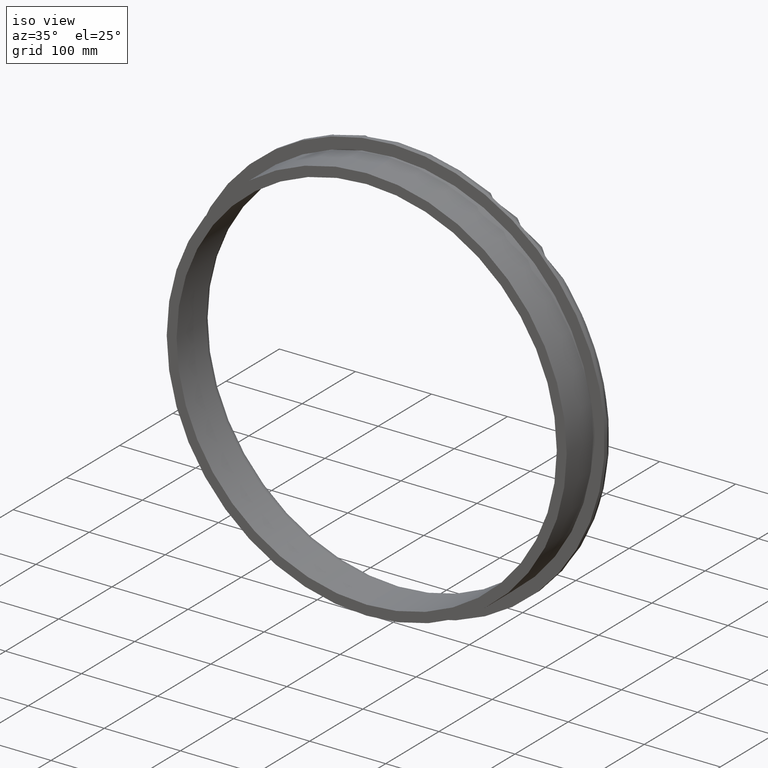
[diagram: clean part render]
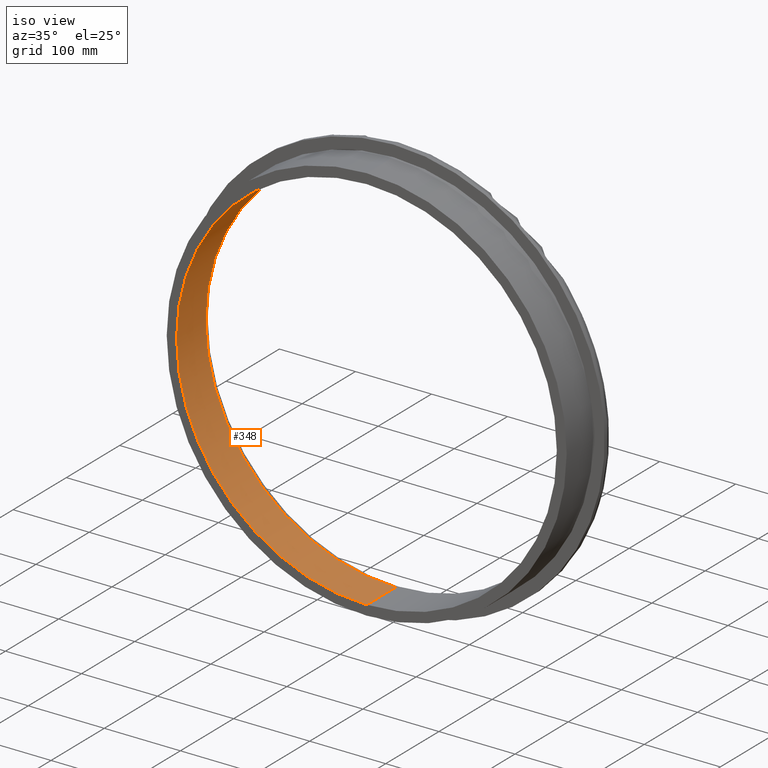
[diagram: same view with one face highlighted and labeled with its STEP entity id]
A machine part, iso view. The second image highlights one B-rep face of the part: STEP entity #348.
In plain terms, the highlighted cylindrical surface (partial cylindrical patch) has radius 250 mm, axis along (0, 1, 0).
Its self-contained STEP definition (entity closure, byte-faithful):
#4 = CARTESIAN_POINT ( 'NONE',  ( 0.0000000000000000000, 4.999999999999997335, 0.0000000000000000000 ) ) ;
#24 = VERTEX_POINT ( 'NONE', #175 ) ;
#26 = CARTESIAN_POINT ( 'NONE',  ( 3.061616997868383121E-14, -50.00000000000000000, -250.0000000000000000 ) ) ;
#39 = VECTOR ( 'NONE', #492, 1000.000000000000000 ) ;
#63 = VERTEX_POINT ( 'NONE', #219 ) ;
#100 = DIRECTION ( 'NONE',  ( 0.0000000000000000000, 1.000000000000000000, 0.0000000000000000000 ) ) ;
#128 = ORIENTED_EDGE ( 'NONE', *, *, #424, .T. ) ;
#133 = CARTESIAN_POINT ( 'NONE',  ( 3.061616997868383121E-14, 4.999999999999997335, -250.0000000000000000 ) ) ;
#137 = CIRCLE ( 'NONE', #384, 250.0000000000000000 ) ;
#142 = CARTESIAN_POINT ( 'NONE',  ( 3.061616997868383121E-14, -50.00000000000000000, -250.0000000000000000 ) ) ;
#175 = CARTESIAN_POINT ( 'NONE',  ( 0.0000000000000000000, -50.00000000000000000, 250.0000000000000000 ) ) ;
#179 = DIRECTION ( 'NONE',  ( 0.0000000000000000000, 1.000000000000000000, 0.0000000000000000000 ) ) ;
#186 = CARTESIAN_POINT ( 'NONE',  ( 0.0000000000000000000, -50.00000000000000000, 0.0000000000000000000 ) ) ;
#219 = CARTESIAN_POINT ( 'NONE',  ( 0.0000000000000000000, 4.999999999999997335, 250.0000000000000000 ) ) ;
#237 = AXIS2_PLACEMENT_3D ( 'NONE', #186, #100, #517 ) ;
#261 = EDGE_CURVE ( 'NONE', #331, #24, #548, .T. ) ;
#283 = DIRECTION ( 'NONE',  ( 0.0000000000000000000, 1.000000000000000000, 0.0000000000000000000 ) ) ;
#295 = EDGE_LOOP ( 'NONE', ( #527, #128, #526, #499 ) ) ;
#328 = EDGE_CURVE ( 'NONE', #24, #63, #377, .T. ) ;
#331 = VERTEX_POINT ( 'NONE', #142 ) ;
#332 = LINE ( 'NONE', #26, #39 ) ;
#335 = DIRECTION ( 'NONE',  ( 0.0000000000000000000, 1.000000000000000000, 0.0000000000000000000 ) ) ;
#342 = AXIS2_PLACEMENT_3D ( 'NONE', #494, #283, #489 ) ;
#348 = ADVANCED_FACE ( 'NONE', ( #411 ), #460, .F. ) ;
#352 = VECTOR ( 'NONE', #335, 1000.000000000000000 ) ;
#374 = CARTESIAN_POINT ( 'NONE',  ( 0.0000000000000000000, -50.00000000000000000, 250.0000000000000000 ) ) ;
#377 = LINE ( 'NONE', #374, #352 ) ;
#384 = AXIS2_PLACEMENT_3D ( 'NONE', #4, #179, #554 ) ;
#411 = FACE_OUTER_BOUND ( 'NONE', #295, .T. ) ;
#424 = EDGE_CURVE ( 'NONE', #331, #531, #332, .T. ) ;
#460 = CYLINDRICAL_SURFACE ( 'NONE', #342, 250.0000000000000000 ) ;
#482 = EDGE_CURVE ( 'NONE', #531, #63, #137, .T. ) ;
#489 = DIRECTION ( 'NONE',  ( 0.0000000000000000000, 0.0000000000000000000, 1.000000000000000000 ) ) ;
#492 = DIRECTION ( 'NONE',  ( 0.0000000000000000000, 1.000000000000000000, 0.0000000000000000000 ) ) ;
#494 = CARTESIAN_POINT ( 'NONE',  ( 0.0000000000000000000, -50.00000000000000000, 0.0000000000000000000 ) ) ;
#499 = ORIENTED_EDGE ( 'NONE', *, *, #328, .F. ) ;
#517 = DIRECTION ( 'NONE',  ( 0.0000000000000000000, 0.0000000000000000000, 1.000000000000000000 ) ) ;
#526 = ORIENTED_EDGE ( 'NONE', *, *, #482, .T. ) ;
#527 = ORIENTED_EDGE ( 'NONE', *, *, #261, .F. ) ;
#531 = VERTEX_POINT ( 'NONE', #133 ) ;
#548 = CIRCLE ( 'NONE', #237, 250.0000000000000000 ) ;
#554 = DIRECTION ( 'NONE',  ( 0.0000000000000000000, 0.0000000000000000000, 1.000000000000000000 ) ) ;